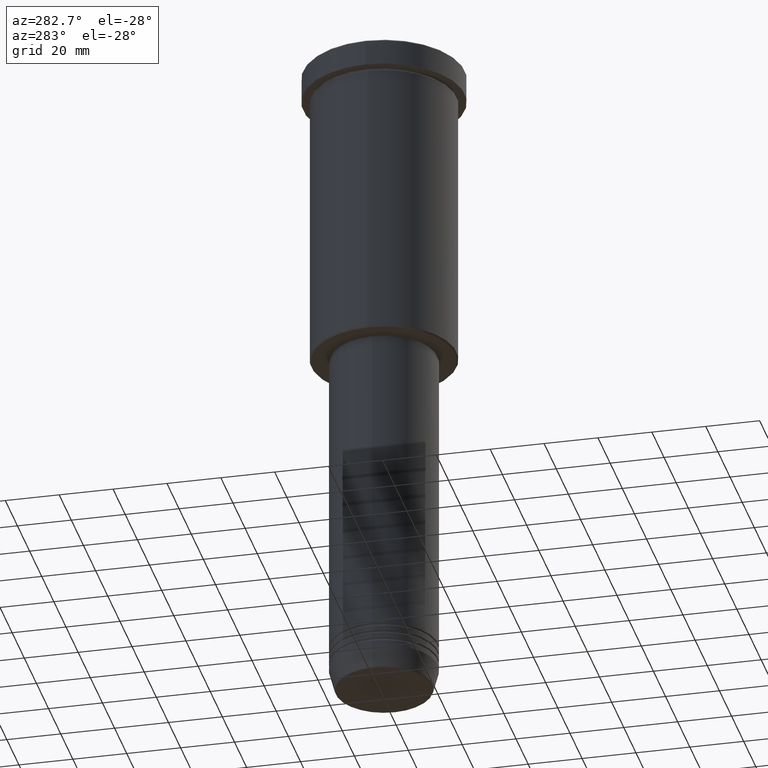
[diagram: clean part render]
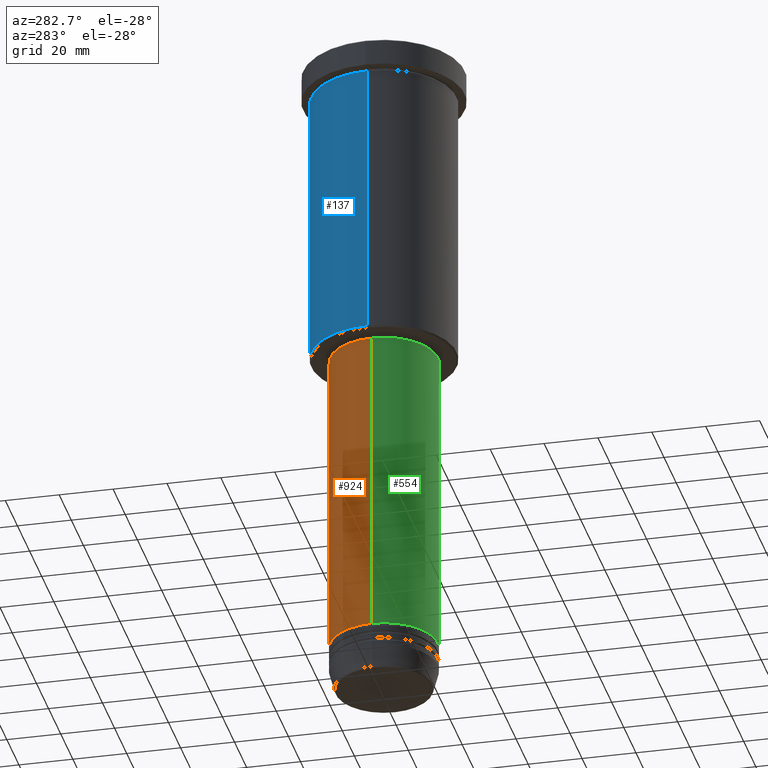
[diagram: same view with three faces highlighted in distinct colors, each labeled with its STEP entity id]
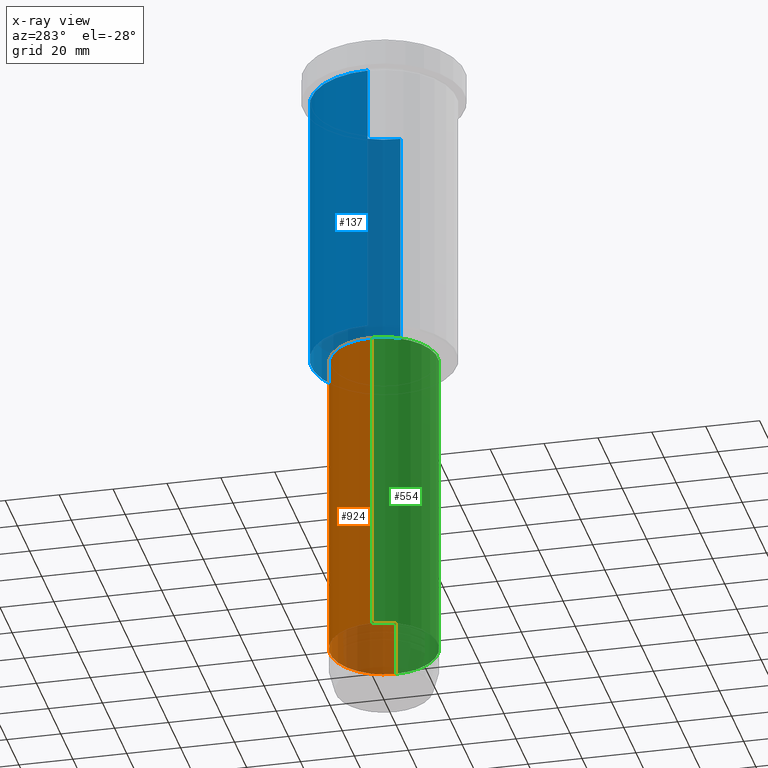
[diagram: x-ray of the same camera — body ghosted, the three highlighted faces saturated]
A machine part, auxiliary view with three faces highlighted in distinct colors.
The next image is the same camera in x-ray (body ghosted, the three faces saturated) — at least one of them is partly hidden behind the body in this view.
Their STEP definitions:

[orange] entity #924 — the highlighted cylindrical surface (partial cylindrical patch) has radius 20 mm, axis along (-0, -0, 1).
#4 = LINE ( 'NONE', #366, #908 ) ;
#28 = VECTOR ( 'NONE', #786, 1000.000000000000000 ) ;
#74 = ORIENTED_EDGE ( 'NONE', *, *, #104, .F. ) ;
#104 = EDGE_CURVE ( 'NONE', #821, #398, #1096, .T. ) ;
#108 = DIRECTION ( 'NONE',  ( 1.000000000000000000, 0.000000000000000000, 0.000000000000000000 ) ) ;
#134 = EDGE_LOOP ( 'NONE', ( #512, #807, #74, #1087 ) ) ;
#160 = CARTESIAN_POINT ( 'NONE',  ( 20.00000000000000000, 0.000000000000000000, -117.0000000000000142 ) ) ;
#236 = CARTESIAN_POINT ( 'NONE',  ( -20.00000000000000000, 2.449293598294706513E-15, 0.000000000000000000 ) ) ;
#252 = DIRECTION ( 'NONE',  ( 1.000000000000000000, 0.000000000000000000, 0.000000000000000000 ) ) ;
#254 = LINE ( 'NONE', #236, #28 ) ;
#265 = DIRECTION ( 'NONE',  ( -0.000000000000000000, -0.000000000000000000, 1.000000000000000000 ) ) ;
#301 = EDGE_CURVE ( 'NONE', #708, #356, #849, .T. ) ;
#328 = CYLINDRICAL_SURFACE ( 'NONE', #982, 20.00000000000000000 ) ;
#356 = VERTEX_POINT ( 'NONE', #1034 ) ;
#366 = CARTESIAN_POINT ( 'NONE',  ( 20.00000000000000000, 0.000000000000000000, 0.000000000000000000 ) ) ;
#391 = AXIS2_PLACEMENT_3D ( 'NONE', #690, #1045, #108 ) ;
#398 = VERTEX_POINT ( 'NONE', #616 ) ;
#442 = EDGE_CURVE ( 'NONE', #356, #398, #254, .T. ) ;
#468 = DIRECTION ( 'NONE',  ( -0.000000000000000000, -0.000000000000000000, 1.000000000000000000 ) ) ;
#509 = FACE_OUTER_BOUND ( 'NONE', #134, .T. ) ;
#512 = ORIENTED_EDGE ( 'NONE', *, *, #301, .T. ) ;
#581 = AXIS2_PLACEMENT_3D ( 'NONE', #1104, #468, #833 ) ;
#616 = CARTESIAN_POINT ( 'NONE',  ( -20.00000000000000000, 2.449293598294706513E-15, -117.0000000000000142 ) ) ;
#690 = CARTESIAN_POINT ( 'NONE',  ( 0.000000000000000000, 0.000000000000000000, -234.0000000000000000 ) ) ;
#708 = VERTEX_POINT ( 'NONE', #1122 ) ;
#786 = DIRECTION ( 'NONE',  ( -0.000000000000000000, -0.000000000000000000, 1.000000000000000000 ) ) ;
#803 = CARTESIAN_POINT ( 'NONE',  ( 0.000000000000000000, 0.000000000000000000, 0.000000000000000000 ) ) ;
#807 = ORIENTED_EDGE ( 'NONE', *, *, #442, .T. ) ;
#821 = VERTEX_POINT ( 'NONE', #160 ) ;
#833 = DIRECTION ( 'NONE',  ( 1.000000000000000000, 0.000000000000000000, 0.000000000000000000 ) ) ;
#849 = CIRCLE ( 'NONE', #391, 20.00000000000000000 ) ;
#908 = VECTOR ( 'NONE', #265, 1000.000000000000000 ) ;
#924 = ADVANCED_FACE ( 'NONE', ( #509 ), #328, .T. ) ;
#982 = AXIS2_PLACEMENT_3D ( 'NONE', #803, #1162, #252 ) ;
#1034 = CARTESIAN_POINT ( 'NONE',  ( -20.00000000000000000, 2.449293598294706513E-15, -234.0000000000000000 ) ) ;
#1045 = DIRECTION ( 'NONE',  ( -0.000000000000000000, -0.000000000000000000, 1.000000000000000000 ) ) ;
#1087 = ORIENTED_EDGE ( 'NONE', *, *, #1112, .F. ) ;
#1096 = CIRCLE ( 'NONE', #581, 20.00000000000000000 ) ;
#1104 = CARTESIAN_POINT ( 'NONE',  ( 0.000000000000000000, 0.000000000000000000, -117.0000000000000142 ) ) ;
#1112 = EDGE_CURVE ( 'NONE', #708, #821, #4, .T. ) ;
#1122 = CARTESIAN_POINT ( 'NONE',  ( 20.00000000000000000, 0.000000000000000000, -234.0000000000000000 ) ) ;
#1162 = DIRECTION ( 'NONE',  ( -0.000000000000000000, -0.000000000000000000, 1.000000000000000000 ) ) ;

[blue] entity #137 — the highlighted cylindrical surface (partial cylindrical patch) has radius 27 mm, axis along (-0, -0, 1).
#49 = EDGE_CURVE ( 'NONE', #159, #748, #848, .T. ) ;
#59 = DIRECTION ( 'NONE',  ( -0.000000000000000000, -0.000000000000000000, 1.000000000000000000 ) ) ;
#73 = VERTEX_POINT ( 'NONE', #342 ) ;
#98 = CARTESIAN_POINT ( 'NONE',  ( 27.00000000000000355, 0.000000000000000000, -115.5000000000000142 ) ) ;
#137 = ADVANCED_FACE ( 'NONE', ( #473 ), #1107, .T. ) ;
#147 = ORIENTED_EDGE ( 'NONE', *, *, #1005, .F. ) ;
#153 = ORIENTED_EDGE ( 'NONE', *, *, #49, .T. ) ;
#154 = EDGE_CURVE ( 'NONE', #159, #523, #741, .T. ) ;
#159 = VERTEX_POINT ( 'NONE', #98 ) ;
#200 = DIRECTION ( 'NONE',  ( -0.000000000000000000, -0.000000000000000000, 1.000000000000000000 ) ) ;
#262 = DIRECTION ( 'NONE',  ( -1.000000000000000000, 0.000000000000000000, 0.000000000000000000 ) ) ;
#275 = AXIS2_PLACEMENT_3D ( 'NONE', #840, #647, #1009 ) ;
#297 = AXIS2_PLACEMENT_3D ( 'NONE', #973, #59, #262 ) ;
#329 = DIRECTION ( 'NONE',  ( -0.000000000000000000, -0.000000000000000000, 1.000000000000000000 ) ) ;
#333 = VECTOR ( 'NONE', #200, 1000.000000000000000 ) ;
#340 = CARTESIAN_POINT ( 'NONE',  ( 0.000000000000000000, 0.000000000000000000, -10.99999999999999289 ) ) ;
#342 = CARTESIAN_POINT ( 'NONE',  ( -27.00000000000000355, 3.306546357697854128E-15, -10.99999999999999289 ) ) ;
#389 = EDGE_CURVE ( 'NONE', #748, #73, #407, .T. ) ;
#407 = LINE ( 'NONE', #510, #639 ) ;
#439 = ORIENTED_EDGE ( 'NONE', *, *, #154, .F. ) ;
#473 = FACE_OUTER_BOUND ( 'NONE', #842, .T. ) ;
#490 = AXIS2_PLACEMENT_3D ( 'NONE', #340, #822, #627 ) ;
#510 = CARTESIAN_POINT ( 'NONE',  ( -27.00000000000000355, 3.306546357697854128E-15, 0.000000000000000000 ) ) ;
#523 = VERTEX_POINT ( 'NONE', #738 ) ;
#627 = DIRECTION ( 'NONE',  ( 1.000000000000000000, 0.000000000000000000, 0.000000000000000000 ) ) ;
#639 = VECTOR ( 'NONE', #329, 1000.000000000000000 ) ;
#647 = DIRECTION ( 'NONE',  ( -0.000000000000000000, -0.000000000000000000, 1.000000000000000000 ) ) ;
#738 = CARTESIAN_POINT ( 'NONE',  ( 27.00000000000000355, 0.000000000000000000, -10.99999999999999289 ) ) ;
#741 = LINE ( 'NONE', #1090, #333 ) ;
#748 = VERTEX_POINT ( 'NONE', #843 ) ;
#822 = DIRECTION ( 'NONE',  ( -0.000000000000000000, -0.000000000000000000, 1.000000000000000000 ) ) ;
#840 = CARTESIAN_POINT ( 'NONE',  ( 0.000000000000000000, 0.000000000000000000, 0.000000000000000000 ) ) ;
#842 = EDGE_LOOP ( 'NONE', ( #153, #1031, #147, #439 ) ) ;
#843 = CARTESIAN_POINT ( 'NONE',  ( -27.00000000000000355, 3.306546357697854128E-15, -115.5000000000000142 ) ) ;
#848 = CIRCLE ( 'NONE', #297, 27.00000000000000355 ) ;
#973 = CARTESIAN_POINT ( 'NONE',  ( 0.000000000000000000, 0.000000000000000000, -115.5000000000000142 ) ) ;
#1001 = CIRCLE ( 'NONE', #490, 27.00000000000000355 ) ;
#1005 = EDGE_CURVE ( 'NONE', #523, #73, #1001, .T. ) ;
#1009 = DIRECTION ( 'NONE',  ( 1.000000000000000000, 0.000000000000000000, 0.000000000000000000 ) ) ;
#1031 = ORIENTED_EDGE ( 'NONE', *, *, #389, .T. ) ;
#1090 = CARTESIAN_POINT ( 'NONE',  ( 27.00000000000000355, 0.000000000000000000, 0.000000000000000000 ) ) ;
#1107 = CYLINDRICAL_SURFACE ( 'NONE', #275, 27.00000000000000355 ) ;

[green] entity #554 — the highlighted cylindrical surface (partial cylindrical patch) has radius 20 mm, axis along (-0, -0, 1).
#4 = LINE ( 'NONE', #366, #908 ) ;
#28 = VECTOR ( 'NONE', #786, 1000.000000000000000 ) ;
#53 = EDGE_LOOP ( 'NONE', ( #720, #194, #207, #343 ) ) ;
#145 = DIRECTION ( 'NONE',  ( 1.000000000000000000, 0.000000000000000000, 0.000000000000000000 ) ) ;
#160 = CARTESIAN_POINT ( 'NONE',  ( 20.00000000000000000, 0.000000000000000000, -117.0000000000000142 ) ) ;
#194 = ORIENTED_EDGE ( 'NONE', *, *, #966, .T. ) ;
#207 = ORIENTED_EDGE ( 'NONE', *, *, #1112, .T. ) ;
#216 = AXIS2_PLACEMENT_3D ( 'NONE', #1002, #830, #814 ) ;
#236 = CARTESIAN_POINT ( 'NONE',  ( -20.00000000000000000, 2.449293598294706513E-15, 0.000000000000000000 ) ) ;
#254 = LINE ( 'NONE', #236, #28 ) ;
#265 = DIRECTION ( 'NONE',  ( -0.000000000000000000, -0.000000000000000000, 1.000000000000000000 ) ) ;
#343 = ORIENTED_EDGE ( 'NONE', *, *, #604, .F. ) ;
#356 = VERTEX_POINT ( 'NONE', #1034 ) ;
#363 = CARTESIAN_POINT ( 'NONE',  ( 0.000000000000000000, 0.000000000000000000, 0.000000000000000000 ) ) ;
#366 = CARTESIAN_POINT ( 'NONE',  ( 20.00000000000000000, 0.000000000000000000, 0.000000000000000000 ) ) ;
#382 = FACE_OUTER_BOUND ( 'NONE', #53, .T. ) ;
#398 = VERTEX_POINT ( 'NONE', #616 ) ;
#442 = EDGE_CURVE ( 'NONE', #356, #398, #254, .T. ) ;
#554 = ADVANCED_FACE ( 'NONE', ( #382 ), #1103, .T. ) ;
#604 = EDGE_CURVE ( 'NONE', #398, #821, #1000, .T. ) ;
#616 = CARTESIAN_POINT ( 'NONE',  ( -20.00000000000000000, 2.449293598294706513E-15, -117.0000000000000142 ) ) ;
#708 = VERTEX_POINT ( 'NONE', #1122 ) ;
#720 = ORIENTED_EDGE ( 'NONE', *, *, #442, .F. ) ;
#758 = CIRCLE ( 'NONE', #813, 20.00000000000000000 ) ;
#786 = DIRECTION ( 'NONE',  ( -0.000000000000000000, -0.000000000000000000, 1.000000000000000000 ) ) ;
#813 = AXIS2_PLACEMENT_3D ( 'NONE', #889, #964, #145 ) ;
#814 = DIRECTION ( 'NONE',  ( 1.000000000000000000, 0.000000000000000000, 0.000000000000000000 ) ) ;
#821 = VERTEX_POINT ( 'NONE', #160 ) ;
#830 = DIRECTION ( 'NONE',  ( -0.000000000000000000, -0.000000000000000000, 1.000000000000000000 ) ) ;
#889 = CARTESIAN_POINT ( 'NONE',  ( 0.000000000000000000, 0.000000000000000000, -234.0000000000000000 ) ) ;
#908 = VECTOR ( 'NONE', #265, 1000.000000000000000 ) ;
#923 = DIRECTION ( 'NONE',  ( 1.000000000000000000, 0.000000000000000000, 0.000000000000000000 ) ) ;
#964 = DIRECTION ( 'NONE',  ( -0.000000000000000000, -0.000000000000000000, 1.000000000000000000 ) ) ;
#966 = EDGE_CURVE ( 'NONE', #356, #708, #758, .T. ) ;
#1000 = CIRCLE ( 'NONE', #216, 20.00000000000000000 ) ;
#1002 = CARTESIAN_POINT ( 'NONE',  ( 0.000000000000000000, 0.000000000000000000, -117.0000000000000142 ) ) ;
#1008 = DIRECTION ( 'NONE',  ( -0.000000000000000000, -0.000000000000000000, 1.000000000000000000 ) ) ;
#1034 = CARTESIAN_POINT ( 'NONE',  ( -20.00000000000000000, 2.449293598294706513E-15, -234.0000000000000000 ) ) ;
#1103 = CYLINDRICAL_SURFACE ( 'NONE', #1172, 20.00000000000000000 ) ;
#1112 = EDGE_CURVE ( 'NONE', #708, #821, #4, .T. ) ;
#1122 = CARTESIAN_POINT ( 'NONE',  ( 20.00000000000000000, 0.000000000000000000, -234.0000000000000000 ) ) ;
#1172 = AXIS2_PLACEMENT_3D ( 'NONE', #363, #1008, #923 ) ;